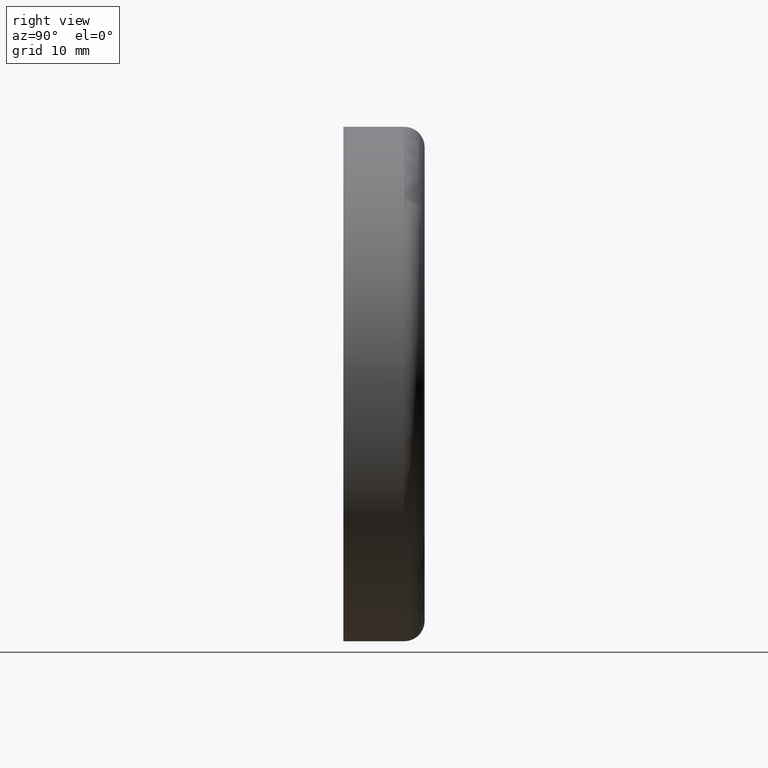
[diagram: clean part render]
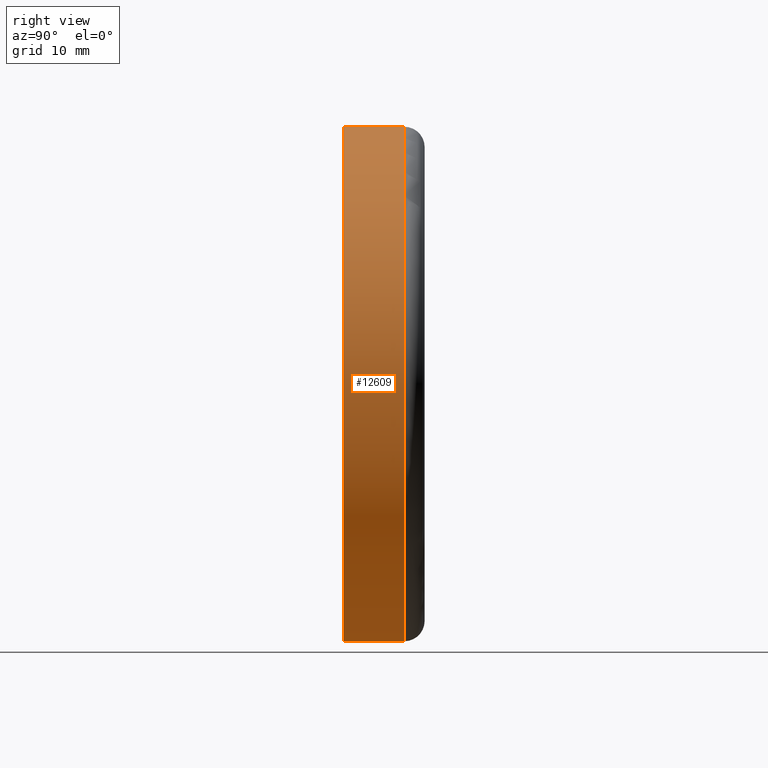
[diagram: same view with one face highlighted and labeled with its STEP entity id]
A machine part, right view. The second image highlights one B-rep face of the part: STEP entity #12609.
In plain terms, the highlighted cylindrical surface (partial cylindrical patch) has radius 38 mm, axis along (-0, -1, -0).
Its self-contained STEP definition (entity closure, byte-faithful):
#179 = EDGE_LOOP ( 'NONE', ( #13341, #850, #2473, #10989 ) ) ;
#452 = LINE ( 'NONE', #2409, #3745 ) ;
#483 = AXIS2_PLACEMENT_3D ( 'NONE', #6216, #11730, #13818 ) ;
#850 = ORIENTED_EDGE ( 'NONE', *, *, #7069, .T. ) ;
#1131 = DIRECTION ( 'NONE',  ( -0.000000000000000000, -1.000000000000000000, -0.000000000000000000 ) ) ;
#1306 = CIRCLE ( 'NONE', #10114, 38.00000000000000711 ) ;
#1858 = EDGE_CURVE ( 'NONE', #9881, #5434, #452, .T. ) ;
#1904 = VERTEX_POINT ( 'NONE', #8074 ) ;
#2409 = CARTESIAN_POINT ( 'NONE',  ( 0.000000000000000000, 0.000000000000000000, -38.00000000000000711 ) ) ;
#2473 = ORIENTED_EDGE ( 'NONE', *, *, #8895, .F. ) ;
#3745 = VECTOR ( 'NONE', #5551, 1000.000000000000000 ) ;
#3780 = LINE ( 'NONE', #8621, #6190 ) ;
#4075 = EDGE_CURVE ( 'NONE', #9881, #1904, #11787, .T. ) ;
#4684 = AXIS2_PLACEMENT_3D ( 'NONE', #5835, #13748, #4878 ) ;
#4878 = DIRECTION ( 'NONE',  ( 0.000000000000000000, 0.000000000000000000, -1.000000000000000000 ) ) ;
#5387 = CARTESIAN_POINT ( 'NONE',  ( 0.000000000000000000, 0.000000000000000000, -38.00000000000000711 ) ) ;
#5434 = VERTEX_POINT ( 'NONE', #5387 ) ;
#5551 = DIRECTION ( 'NONE',  ( -0.000000000000000000, -1.000000000000000000, -0.000000000000000000 ) ) ;
#5835 = CARTESIAN_POINT ( 'NONE',  ( 0.000000000000000000, 0.000000000000000000, 0.000000000000000000 ) ) ;
#6190 = VECTOR ( 'NONE', #12026, 1000.000000000000000 ) ;
#6216 = CARTESIAN_POINT ( 'NONE',  ( 0.000000000000000000, 9.000000000000001776, 0.000000000000000000 ) ) ;
#6274 = FACE_OUTER_BOUND ( 'NONE', #179, .T. ) ;
#7069 = EDGE_CURVE ( 'NONE', #1904, #9947, #3780, .T. ) ;
#7605 = DIRECTION ( 'NONE',  ( 0.000000000000000000, 0.000000000000000000, -1.000000000000000000 ) ) ;
#8074 = CARTESIAN_POINT ( 'NONE',  ( 4.653657836759942730E-15, 9.000000000000001776, 38.00000000000000711 ) ) ;
#8621 = CARTESIAN_POINT ( 'NONE',  ( 4.653657836759942730E-15, 0.000000000000000000, 38.00000000000000711 ) ) ;
#8895 = EDGE_CURVE ( 'NONE', #5434, #9947, #1306, .T. ) ;
#9162 = CARTESIAN_POINT ( 'NONE',  ( 0.000000000000000000, 9.000000000000001776, -38.00000000000000711 ) ) ;
#9881 = VERTEX_POINT ( 'NONE', #9162 ) ;
#9947 = VERTEX_POINT ( 'NONE', #13770 ) ;
#10114 = AXIS2_PLACEMENT_3D ( 'NONE', #10988, #1131, #7605 ) ;
#10989 = ORIENTED_EDGE ( 'NONE', *, *, #1858, .F. ) ;
#10988 = CARTESIAN_POINT ( 'NONE',  ( 0.000000000000000000, 0.000000000000000000, 0.000000000000000000 ) ) ;
#11730 = DIRECTION ( 'NONE',  ( -0.000000000000000000, -1.000000000000000000, -0.000000000000000000 ) ) ;
#11787 = CIRCLE ( 'NONE', #483, 38.00000000000000711 ) ;
#11848 = CYLINDRICAL_SURFACE ( 'NONE', #4684, 38.00000000000000711 ) ;
#12026 = DIRECTION ( 'NONE',  ( -0.000000000000000000, -1.000000000000000000, -0.000000000000000000 ) ) ;
#12609 = ADVANCED_FACE ( 'NONE', ( #6274 ), #11848, .T. ) ;
#13341 = ORIENTED_EDGE ( 'NONE', *, *, #4075, .T. ) ;
#13748 = DIRECTION ( 'NONE',  ( -0.000000000000000000, -1.000000000000000000, -0.000000000000000000 ) ) ;
#13770 = CARTESIAN_POINT ( 'NONE',  ( 4.653657836759942730E-15, 0.000000000000000000, 38.00000000000000711 ) ) ;
#13818 = DIRECTION ( 'NONE',  ( 0.000000000000000000, 0.000000000000000000, -1.000000000000000000 ) ) ;